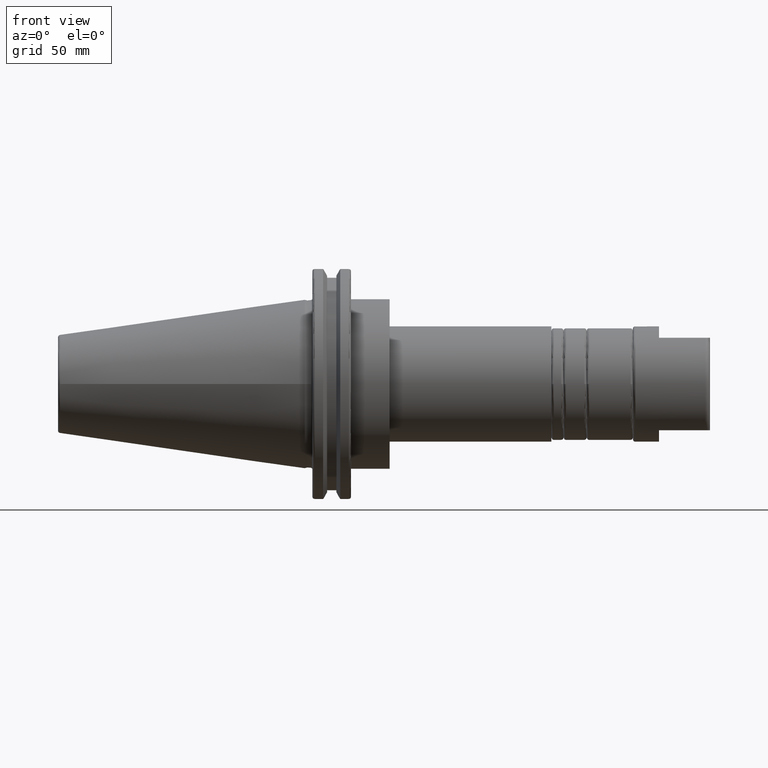
[diagram: clean part render]
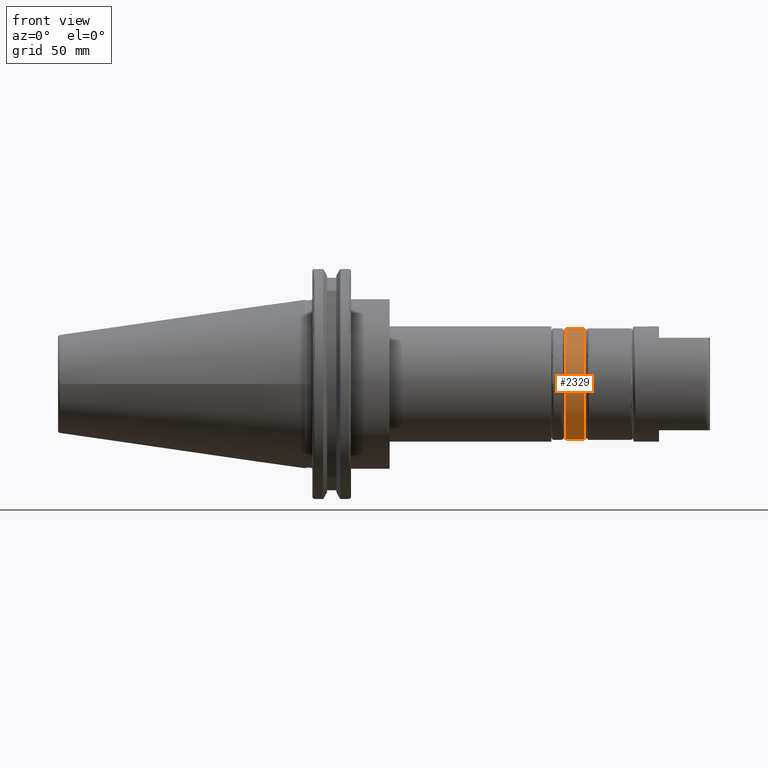
[diagram: same view with one face highlighted and labeled with its STEP entity id]
A machine part, front view. The second image highlights one B-rep face of the part: STEP entity #2329.
In plain terms, the highlighted cylindrical surface (bore or boss wall) has radius 23 mm, axis along (1, 0, 0).
Its self-contained STEP definition (entity closure, byte-faithful):
#640=CIRCLE('',#2736,23.);
#641=CIRCLE('',#2737,23.);
#644=CIRCLE('',#2741,23.);
#645=CIRCLE('',#2742,23.);
#719=CYLINDRICAL_SURFACE('',#2740,23.);
#807=FACE_OUTER_BOUND('',#928,.T.);
#928=EDGE_LOOP('',(#2056,#2057,#2058,#2059,#2060,#2061));
#1060=LINE('',#4386,#1190);
#1190=VECTOR('',#3336,23.);
#1351=VERTEX_POINT('',#4375);
#1352=VERTEX_POINT('',#4376);
#1354=VERTEX_POINT('',#4383);
#1355=VERTEX_POINT('',#4384);
#1592=EDGE_CURVE('',#1351,#1352,#640,.T.);
#1593=EDGE_CURVE('',#1352,#1351,#641,.T.);
#1596=EDGE_CURVE('',#1354,#1355,#644,.T.);
#1597=EDGE_CURVE('',#1354,#1352,#1060,.T.);
#1598=EDGE_CURVE('',#1355,#1354,#645,.T.);
#2056=ORIENTED_EDGE('',*,*,#1596,.F.);
#2057=ORIENTED_EDGE('',*,*,#1597,.T.);
#2058=ORIENTED_EDGE('',*,*,#1592,.F.);
#2059=ORIENTED_EDGE('',*,*,#1593,.F.);
#2060=ORIENTED_EDGE('',*,*,#1597,.F.);
#2061=ORIENTED_EDGE('',*,*,#1598,.F.);
#2329=ADVANCED_FACE('',(#807),#719,.T.);
#2736=AXIS2_PLACEMENT_3D('',#4377,#3324,#3325);
#2737=AXIS2_PLACEMENT_3D('',#4378,#3326,#3327);
#2740=AXIS2_PLACEMENT_3D('',#4382,#3332,#3333);
#2741=AXIS2_PLACEMENT_3D('',#4385,#3334,#3335);
#2742=AXIS2_PLACEMENT_3D('',#4387,#3337,#3338);
#3324=DIRECTION('center_axis',(-1.,0.,0.));
#3325=DIRECTION('ref_axis',(0.,-1.,1.83697019872103E-16));
#3326=DIRECTION('center_axis',(-1.,0.,0.));
#3327=DIRECTION('ref_axis',(0.,-1.,1.83697019872103E-16));
#3332=DIRECTION('center_axis',(1.,0.,0.));
#3333=DIRECTION('ref_axis',(0.,1.,0.));
#3334=DIRECTION('center_axis',(1.,0.,0.));
#3335=DIRECTION('ref_axis',(0.,-1.,1.83697019872103E-16));
#3336=DIRECTION('',(-1.,0.,0.));
#3337=DIRECTION('center_axis',(1.,0.,0.));
#3338=DIRECTION('ref_axis',(0.,-1.,1.83697019872103E-16));
#4375=CARTESIAN_POINT('',(-3.7625,-2.81668763803891E-15,23.));
#4376=CARTESIAN_POINT('',(-3.7625,-23.,-2.81668763803891E-15));
#4377=CARTESIAN_POINT('Origin',(-3.7625,0.,0.));
#4378=CARTESIAN_POINT('Origin',(-3.7625,0.,0.));
#4382=CARTESIAN_POINT('Origin',(0.,0.,0.));
#4383=CARTESIAN_POINT('',(3.7625,-23.,-2.81668763803891E-15));
#4384=CARTESIAN_POINT('',(3.7625,-2.81668763803891E-15,23.));
#4385=CARTESIAN_POINT('Origin',(3.7625,0.,0.));
#4386=CARTESIAN_POINT('',(0.,-23.,-2.81668763803891E-15));
#4387=CARTESIAN_POINT('Origin',(3.7625,0.,0.));